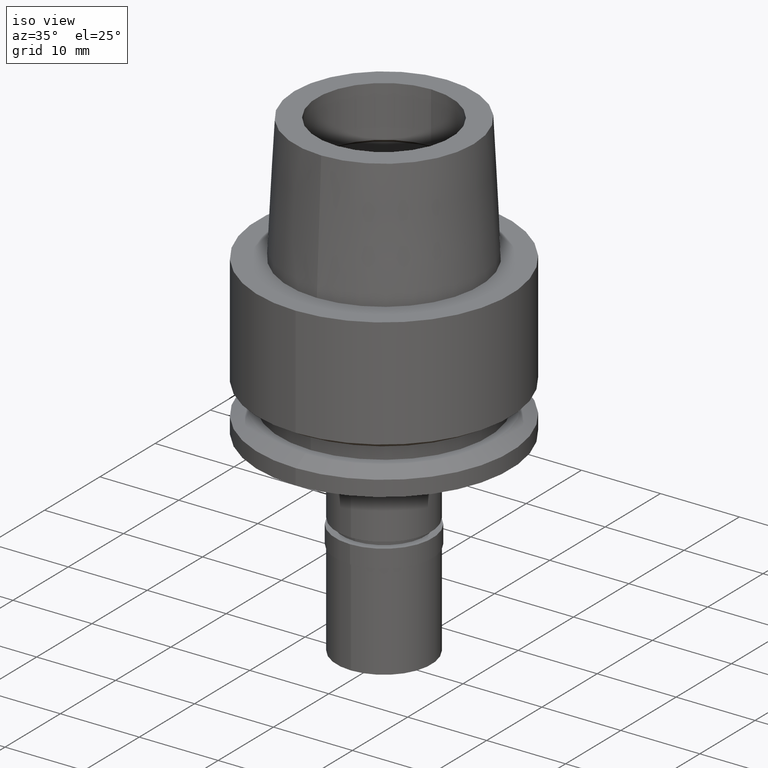
[diagram: clean part render]
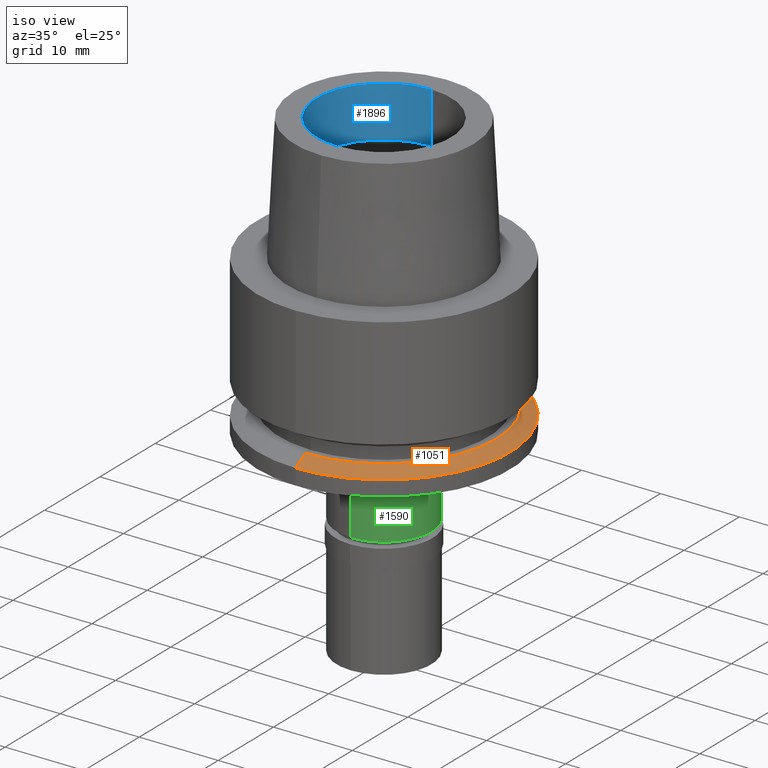
[diagram: same view with three faces highlighted in distinct colors, each labeled with its STEP entity id]
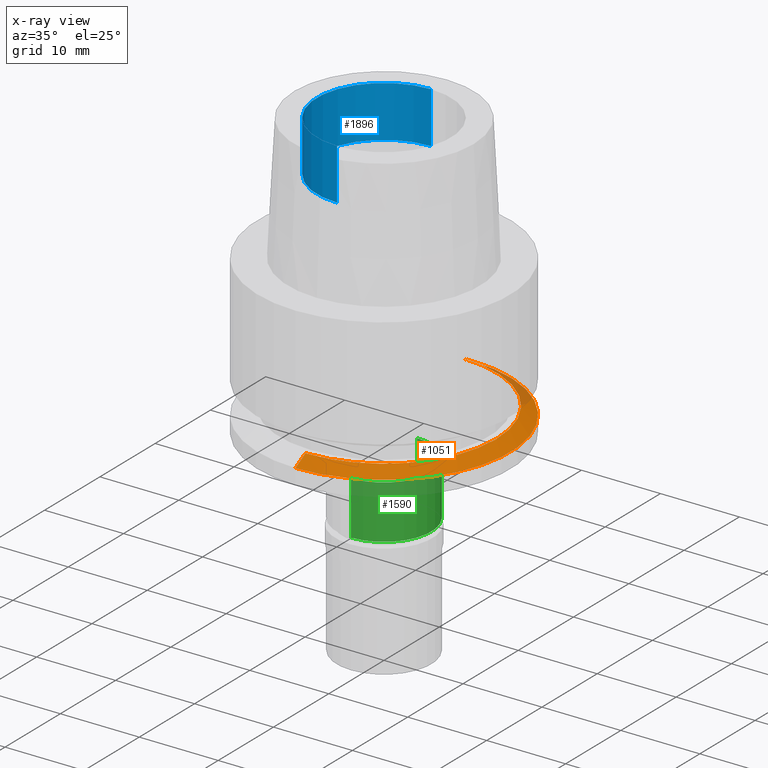
[diagram: x-ray of the same camera — body ghosted, the three highlighted faces saturated]
A machine part, iso view with three faces highlighted in distinct colors.
The next image is the same camera in x-ray (body ghosted, the three faces saturated) — at least one of them is partly hidden behind the body in this view.
Their STEP definitions:

[orange] entity #1051 — the highlighted conical surface has half-angle 60 deg.
#123 = AXIS2_PLACEMENT_3D ( 'NONE', #2400, #2367, #750 ) ;
#499 = VERTEX_POINT ( 'NONE', #1496 ) ;
#504 = DIRECTION ( 'NONE',  ( 0.0000000000000000000, 1.000000000000000000, 0.0000000000000000000 ) ) ;
#529 = AXIS2_PLACEMENT_3D ( 'NONE', #1721, #1751, #890 ) ;
#560 = CIRCLE ( 'NONE', #123, 16.00000000000000000 ) ;
#644 = VERTEX_POINT ( 'NONE', #1944 ) ;
#663 = EDGE_CURVE ( 'NONE', #2228, #499, #560, .T. ) ;
#728 = ORIENTED_EDGE ( 'NONE', *, *, #2009, .T. ) ;
#750 = DIRECTION ( 'NONE',  ( 0.0000000000000000000, 1.000000000000000000, 0.0000000000000000000 ) ) ;
#754 = CARTESIAN_POINT ( 'NONE',  ( 0.0000000000000000000, 0.0000000000000000000, -17.00000000000000000 ) ) ;
#836 = DIRECTION ( 'NONE',  ( 0.0000000000000000000, 0.8660254037847886499, -0.4999999999993937627 ) ) ;
#886 = LINE ( 'NONE', #2132, #997 ) ;
#890 = DIRECTION ( 'NONE',  ( 0.0000000000000000000, -1.000000000000000000, 0.0000000000000000000 ) ) ;
#997 = VECTOR ( 'NONE', #1287, 1000.000000000000000 ) ;
#1051 = ADVANCED_FACE ( 'NONE', ( #1950 ), #2060, .T. ) ;
#1075 = ORIENTED_EDGE ( 'NONE', *, *, #2281, .F. ) ;
#1122 = LINE ( 'NONE', #1759, #1798 ) ;
#1287 = DIRECTION ( 'NONE',  ( 0.0000000000000000000, -0.8660254037847886499, -0.4999999999993937627 ) ) ;
#1496 = CARTESIAN_POINT ( 'NONE',  ( 0.0000000000000000000, -16.00000000000000000, -18.02072594216000212 ) ) ;
#1602 = EDGE_LOOP ( 'NONE', ( #1632, #728, #1735, #1075 ) ) ;
#1632 = ORIENTED_EDGE ( 'NONE', *, *, #1680, .T. ) ;
#1680 = EDGE_CURVE ( 'NONE', #1852, #644, #2212, .T. ) ;
#1721 = CARTESIAN_POINT ( 'NONE',  ( 0.0000000000000000000, 0.0000000000000000000, -17.51036297107999928 ) ) ;
#1735 = ORIENTED_EDGE ( 'NONE', *, *, #663, .F. ) ;
#1751 = DIRECTION ( 'NONE',  ( 0.0000000000000000000, 0.0000000000000000000, -1.000000000000000000 ) ) ;
#1759 = CARTESIAN_POINT ( 'NONE',  ( 0.0000000000000000000, 14.23205080756999941, -17.00000000000000000 ) ) ;
#1791 = AXIS2_PLACEMENT_3D ( 'NONE', #754, #2583, #504 ) ;
#1798 = VECTOR ( 'NONE', #836, 1000.000000000000000 ) ;
#1852 = VERTEX_POINT ( 'NONE', #2067 ) ;
#1944 = CARTESIAN_POINT ( 'NONE',  ( 0.0000000000000000000, -14.23205080756999941, -17.00000000000000000 ) ) ;
#1950 = FACE_OUTER_BOUND ( 'NONE', #1602, .T. ) ;
#2009 = EDGE_CURVE ( 'NONE', #644, #499, #886, .T. ) ;
#2060 = CONICAL_SURFACE ( 'NONE', #529, 15.11602540378000015, 1.047197551196400456 ) ;
#2067 = CARTESIAN_POINT ( 'NONE',  ( 0.0000000000000000000, 14.23205080756999941, -17.00000000000000000 ) ) ;
#2132 = CARTESIAN_POINT ( 'NONE',  ( 0.0000000000000000000, -14.23205080756999941, -17.00000000000000000 ) ) ;
#2212 = CIRCLE ( 'NONE', #1791, 14.23205080756999941 ) ;
#2228 = VERTEX_POINT ( 'NONE', #2580 ) ;
#2281 = EDGE_CURVE ( 'NONE', #1852, #2228, #1122, .T. ) ;
#2367 = DIRECTION ( 'NONE',  ( 0.0000000000000000000, 0.0000000000000000000, -1.000000000000000000 ) ) ;
#2400 = CARTESIAN_POINT ( 'NONE',  ( 0.0000000000000000000, 0.0000000000000000000, -18.02072594216000212 ) ) ;
#2580 = CARTESIAN_POINT ( 'NONE',  ( 0.0000000000000000000, 16.00000000000000000, -18.02072594216000212 ) ) ;
#2583 = DIRECTION ( 'NONE',  ( 0.0000000000000000000, 0.0000000000000000000, -1.000000000000000000 ) ) ;

[blue] entity #1896 — the highlighted cylindrical surface (partial cylindrical patch) has radius 8.5 mm, axis along (0, 0, 1).
#122 = CIRCLE ( 'NONE', #1576, 8.500000000000000000 ) ;
#223 = EDGE_CURVE ( 'NONE', #2089, #2324, #122, .T. ) ;
#259 = EDGE_CURVE ( 'NONE', #2034, #1120, #1800, .T. ) ;
#398 = CARTESIAN_POINT ( 'NONE',  ( 0.0000000000000000000, -8.500000000000000000, 16.00000000000000000 ) ) ;
#445 = CARTESIAN_POINT ( 'NONE',  ( 0.0000000000000000000, 0.0000000000000000000, 16.00000000000000000 ) ) ;
#467 = EDGE_LOOP ( 'NONE', ( #2551, #486, #662, #1495 ) ) ;
#476 = CARTESIAN_POINT ( 'NONE',  ( 0.0000000000000000000, 8.500000000000000000, 16.00000000000000000 ) ) ;
#486 = ORIENTED_EDGE ( 'NONE', *, *, #1847, .F. ) ;
#570 = DIRECTION ( 'NONE',  ( 0.0000000000000000000, 0.0000000000000000000, 1.000000000000000000 ) ) ;
#662 = ORIENTED_EDGE ( 'NONE', *, *, #259, .T. ) ;
#668 = CARTESIAN_POINT ( 'NONE',  ( 0.0000000000000000000, -8.500000000000000000, 9.497350269190000915 ) ) ;
#791 = CARTESIAN_POINT ( 'NONE',  ( 0.0000000000000000000, 0.0000000000000000000, 9.497350269190000915 ) ) ;
#853 = LINE ( 'NONE', #2149, #1615 ) ;
#1090 = VECTOR ( 'NONE', #1199, 1000.000000000000000 ) ;
#1120 = VERTEX_POINT ( 'NONE', #2376 ) ;
#1199 = DIRECTION ( 'NONE',  ( 0.0000000000000000000, 0.0000000000000000000, 1.000000000000000000 ) ) ;
#1209 = DIRECTION ( 'NONE',  ( 0.0000000000000000000, 0.0000000000000000000, -1.000000000000000000 ) ) ;
#1225 = CARTESIAN_POINT ( 'NONE',  ( 0.0000000000000000000, -8.500000000000000000, 9.497350269190000915 ) ) ;
#1495 = ORIENTED_EDGE ( 'NONE', *, *, #1974, .T. ) ;
#1576 = AXIS2_PLACEMENT_3D ( 'NONE', #445, #2306, #2133 ) ;
#1615 = VECTOR ( 'NONE', #2319, 1000.000000000000000 ) ;
#1621 = DIRECTION ( 'NONE',  ( 0.0000000000000000000, -1.000000000000000000, 0.0000000000000000000 ) ) ;
#1659 = DIRECTION ( 'NONE',  ( 0.0000000000000000000, 1.000000000000000000, 0.0000000000000000000 ) ) ;
#1795 = AXIS2_PLACEMENT_3D ( 'NONE', #2446, #570, #1659 ) ;
#1800 = CIRCLE ( 'NONE', #2263, 8.500000000000000000 ) ;
#1847 = EDGE_CURVE ( 'NONE', #2034, #2324, #1854, .T. ) ;
#1854 = LINE ( 'NONE', #1225, #1090 ) ;
#1896 = ADVANCED_FACE ( 'NONE', ( #2683 ), #2671, .F. ) ;
#1974 = EDGE_CURVE ( 'NONE', #1120, #2089, #853, .T. ) ;
#2034 = VERTEX_POINT ( 'NONE', #668 ) ;
#2089 = VERTEX_POINT ( 'NONE', #476 ) ;
#2133 = DIRECTION ( 'NONE',  ( 0.0000000000000000000, 1.000000000000000000, 0.0000000000000000000 ) ) ;
#2149 = CARTESIAN_POINT ( 'NONE',  ( 0.0000000000000000000, 8.500000000000000000, 9.497350269190000915 ) ) ;
#2263 = AXIS2_PLACEMENT_3D ( 'NONE', #791, #1209, #1621 ) ;
#2306 = DIRECTION ( 'NONE',  ( 0.0000000000000000000, 0.0000000000000000000, 1.000000000000000000 ) ) ;
#2319 = DIRECTION ( 'NONE',  ( 0.0000000000000000000, 0.0000000000000000000, 1.000000000000000000 ) ) ;
#2324 = VERTEX_POINT ( 'NONE', #398 ) ;
#2376 = CARTESIAN_POINT ( 'NONE',  ( 0.0000000000000000000, 8.500000000000000000, 9.497350269190000915 ) ) ;
#2446 = CARTESIAN_POINT ( 'NONE',  ( 0.0000000000000000000, 0.0000000000000000000, -43.85000000000000142 ) ) ;
#2551 = ORIENTED_EDGE ( 'NONE', *, *, #223, .T. ) ;
#2671 = CYLINDRICAL_SURFACE ( 'NONE', #1795, 8.500000000000000000 ) ;
#2683 = FACE_OUTER_BOUND ( 'NONE', #467, .T. ) ;

[green] entity #1590 — the highlighted cylindrical surface (partial cylindrical patch) has radius 6 mm, axis along (0, 0, 1).
#6 = EDGE_LOOP ( 'NONE', ( #44, #2366, #1023, #536 ) ) ;
#44 = ORIENTED_EDGE ( 'NONE', *, *, #1606, .T. ) ;
#79 = CIRCLE ( 'NONE', #964, 6.000000000000000000 ) ;
#103 = DIRECTION ( 'NONE',  ( 0.0000000000000000000, 0.0000000000000000000, -1.000000000000000000 ) ) ;
#239 = CARTESIAN_POINT ( 'NONE',  ( 0.0000000000000000000, 0.0000000000000000000, -29.80000000000000071 ) ) ;
#328 = CYLINDRICAL_SURFACE ( 'NONE', #470, 6.000000000000000000 ) ;
#396 = CARTESIAN_POINT ( 'NONE',  ( 0.0000000000000000000, 6.000000000000000000, -23.00000000000000000 ) ) ;
#447 = EDGE_CURVE ( 'NONE', #2595, #1908, #79, .T. ) ;
#470 = AXIS2_PLACEMENT_3D ( 'NONE', #974, #2163, #522 ) ;
#522 = DIRECTION ( 'NONE',  ( 0.0000000000000000000, 1.000000000000000000, 0.0000000000000000000 ) ) ;
#536 = ORIENTED_EDGE ( 'NONE', *, *, #1761, .F. ) ;
#713 = DIRECTION ( 'NONE',  ( 0.0000000000000000000, 0.0000000000000000000, -1.000000000000000000 ) ) ;
#800 = VERTEX_POINT ( 'NONE', #1417 ) ;
#802 = DIRECTION ( 'NONE',  ( 0.0000000000000000000, 0.0000000000000000000, -1.000000000000000000 ) ) ;
#964 = AXIS2_PLACEMENT_3D ( 'NONE', #239, #2548, #2537 ) ;
#974 = CARTESIAN_POINT ( 'NONE',  ( 0.0000000000000000000, 0.0000000000000000000, -43.85000000000000142 ) ) ;
#1023 = ORIENTED_EDGE ( 'NONE', *, *, #447, .T. ) ;
#1143 = DIRECTION ( 'NONE',  ( 0.0000000000000000000, 1.000000000000000000, 0.0000000000000000000 ) ) ;
#1167 = CARTESIAN_POINT ( 'NONE',  ( 0.0000000000000000000, 0.0000000000000000000, -23.00000000000000000 ) ) ;
#1387 = VECTOR ( 'NONE', #713, 1000.000000000000000 ) ;
#1417 = CARTESIAN_POINT ( 'NONE',  ( 0.0000000000000000000, -6.000000000000000000, -23.00000000000000000 ) ) ;
#1527 = VERTEX_POINT ( 'NONE', #2006 ) ;
#1586 = FACE_OUTER_BOUND ( 'NONE', #6, .T. ) ;
#1590 = ADVANCED_FACE ( 'NONE', ( #1586 ), #328, .T. ) ;
#1606 = EDGE_CURVE ( 'NONE', #1527, #800, #2565, .T. ) ;
#1671 = EDGE_CURVE ( 'NONE', #800, #2595, #1807, .T. ) ;
#1761 = EDGE_CURVE ( 'NONE', #1527, #1908, #2677, .T. ) ;
#1807 = LINE ( 'NONE', #2622, #1387 ) ;
#1876 = AXIS2_PLACEMENT_3D ( 'NONE', #1167, #103, #1143 ) ;
#1908 = VERTEX_POINT ( 'NONE', #2484 ) ;
#2006 = CARTESIAN_POINT ( 'NONE',  ( 0.0000000000000000000, 6.000000000000000000, -23.00000000000000000 ) ) ;
#2163 = DIRECTION ( 'NONE',  ( 0.0000000000000000000, 0.0000000000000000000, 1.000000000000000000 ) ) ;
#2346 = CARTESIAN_POINT ( 'NONE',  ( 0.0000000000000000000, -6.000000000000000000, -29.80000000000000071 ) ) ;
#2366 = ORIENTED_EDGE ( 'NONE', *, *, #1671, .T. ) ;
#2388 = VECTOR ( 'NONE', #802, 1000.000000000000000 ) ;
#2484 = CARTESIAN_POINT ( 'NONE',  ( 0.0000000000000000000, 6.000000000000000000, -29.80000000000000071 ) ) ;
#2537 = DIRECTION ( 'NONE',  ( 0.0000000000000000000, -1.000000000000000000, 0.0000000000000000000 ) ) ;
#2548 = DIRECTION ( 'NONE',  ( 0.0000000000000000000, 0.0000000000000000000, 1.000000000000000000 ) ) ;
#2565 = CIRCLE ( 'NONE', #1876, 6.000000000000000000 ) ;
#2595 = VERTEX_POINT ( 'NONE', #2346 ) ;
#2622 = CARTESIAN_POINT ( 'NONE',  ( 0.0000000000000000000, -6.000000000000000000, -23.00000000000000000 ) ) ;
#2677 = LINE ( 'NONE', #396, #2388 ) ;